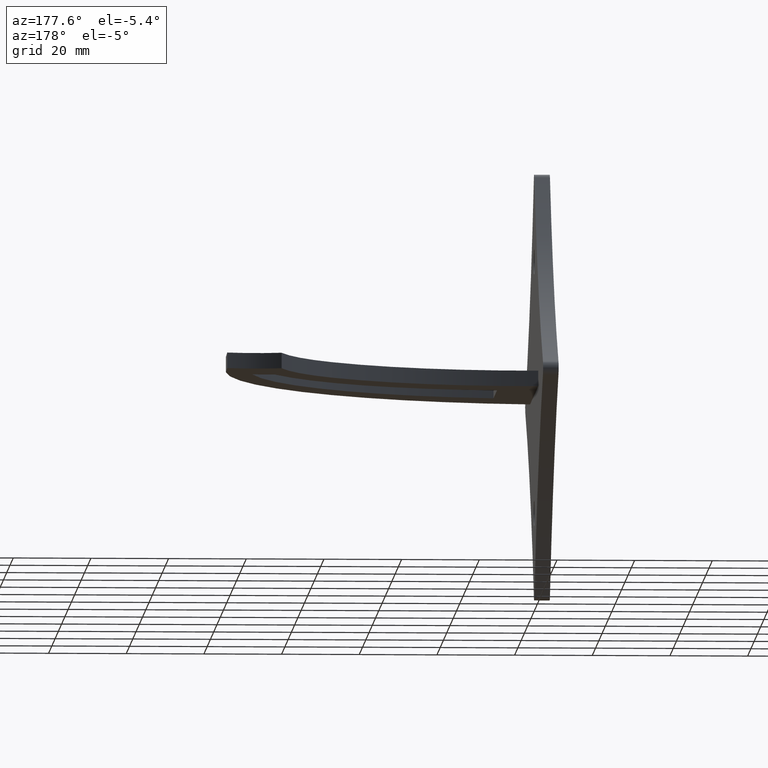
[diagram: clean part render]
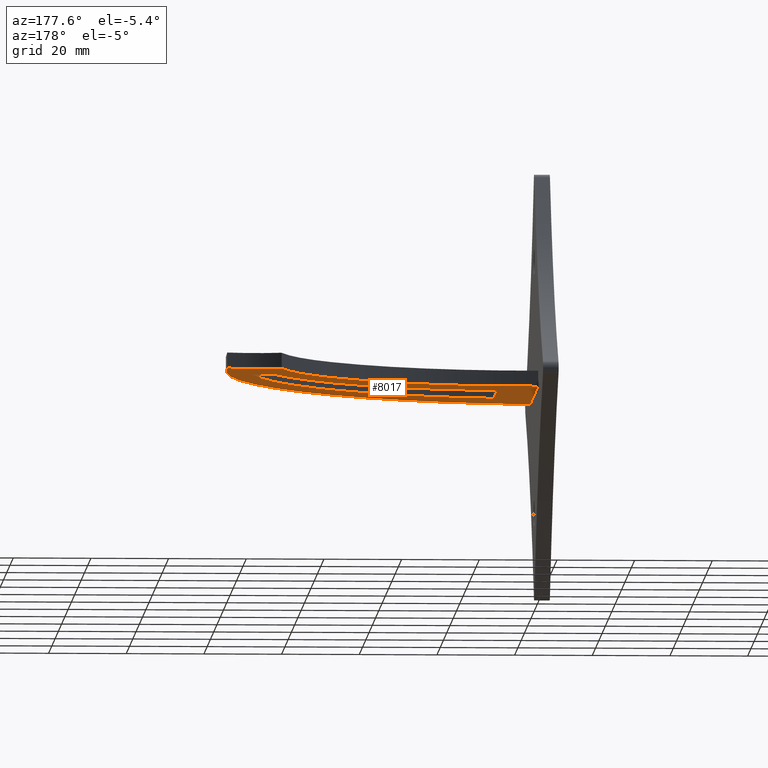
[diagram: same view with one face highlighted and labeled with its STEP entity id]
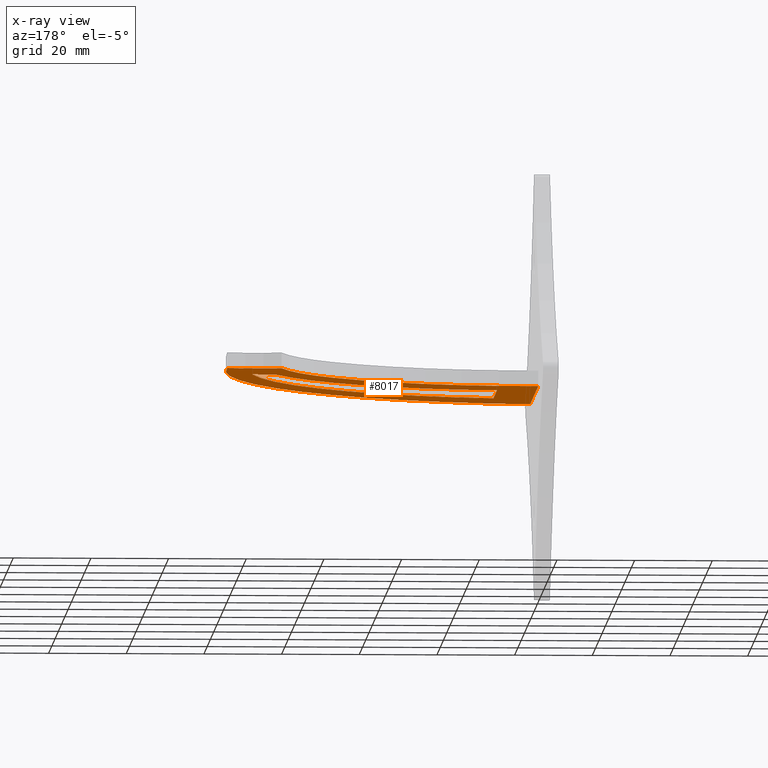
[diagram: x-ray of the same camera — body ghosted, the highlighted face saturated]
A machine part, auxiliary view. The second image highlights one B-rep face of the part: STEP entity #8017.
The next image is the same camera in x-ray: the body ghosted, the highlighted face saturated — about 0% of this face is hidden behind the body in this view.
In plain terms, the highlighted planar face has unit normal (-0, 0, 1).
Its self-contained STEP definition (entity closure, byte-faithful):
#12 = EDGE_CURVE ( 'NONE', #4751, #9887, #10859, .T. ) ;
#174 = CARTESIAN_POINT ( 'NONE',  ( -9.878794471127335441, 66.46807869304582539, -2.000000000000000000 ) ) ;
#339 = CARTESIAN_POINT ( 'NONE',  ( 5.180452133363093736, 82.72691493104838401, -2.000000000000000000 ) ) ;
#444 = CARTESIAN_POINT ( 'NONE',  ( 10.09999999999999964, -8.700000000000001066, -2.000000000000000000 ) ) ;
#546 = ORIENTED_EDGE ( 'NONE', *, *, #6405, .F. ) ;
#923 = EDGE_CURVE ( 'NONE', #7439, #4751, #10198, .T. ) ;
#984 = ORIENTED_EDGE ( 'NONE', *, *, #12, .T. ) ;
#1035 = EDGE_CURVE ( 'NONE', #9887, #5770, #2910, .T. ) ;
#1122 = CARTESIAN_POINT ( 'NONE',  ( 81.99999999999997158, 71.18900302333739205, -2.000000000000000000 ) ) ;
#1190 = AXIS2_PLACEMENT_3D ( 'NONE', #174, #3898, #5605 ) ;
#1270 = DIRECTION ( 'NONE',  ( 1.000000000000000000, 0.000000000000000000, 0.000000000000000000 ) ) ;
#1315 = EDGE_CURVE ( 'NONE', #5722, #5489, #4184, .T. ) ;
#1446 = DIRECTION ( 'NONE',  ( -0.000000000000000000, 0.000000000000000000, 1.000000000000000000 ) ) ;
#1674 = FACE_BOUND ( 'NONE', #3865, .T. ) ;
#1762 = VECTOR ( 'NONE', #7844, 1000.000000000000000 ) ;
#1979 = CARTESIAN_POINT ( 'NONE',  ( -2.274320155918185815, 68.81855391245915143, -2.000000000000000000 ) ) ;
#2007 = VERTEX_POINT ( 'NONE', #1122 ) ;
#2115 = CIRCLE ( 'NONE', #10507, 78.49999999999998579 ) ;
#2225 = EDGE_CURVE ( 'NONE', #5770, #2007, #8271, .T. ) ;
#2491 = DIRECTION ( 'NONE',  ( 1.000000000000000000, 0.000000000000000000, 0.000000000000000000 ) ) ;
#2616 = EDGE_CURVE ( 'NONE', #5722, #3281, #2115, .T. ) ;
#2910 = CIRCLE ( 'NONE', #9169, 55.00000000000000711 ) ;
#2948 = VECTOR ( 'NONE', #1270, 1000.000000000000000 ) ;
#3203 = AXIS2_PLACEMENT_3D ( 'NONE', #11853, #4440, #3469 ) ;
#3269 = CARTESIAN_POINT ( 'NONE',  ( 0.000000000000000000, 0.000000000000000000, -2.000000000000000000 ) ) ;
#3281 = VERTEX_POINT ( 'NONE', #5032 ) ;
#3469 = DIRECTION ( 'NONE',  ( 1.000000000000000000, 0.000000000000000000, 0.000000000000000000 ) ) ;
#3526 = DIRECTION ( 'NONE',  ( -0.000000000000000000, 0.000000000000000000, 1.000000000000000000 ) ) ;
#3827 = FACE_OUTER_BOUND ( 'NONE', #4403, .T. ) ;
#3865 = EDGE_LOOP ( 'NONE', ( #4672, #4154, #10472, #5858 ) ) ;
#3898 = DIRECTION ( 'NONE',  ( -0.000000000000000000, 0.000000000000000000, 1.000000000000000000 ) ) ;
#4074 = ORIENTED_EDGE ( 'NONE', *, *, #923, .T. ) ;
#4154 = ORIENTED_EDGE ( 'NONE', *, *, #1315, .F. ) ;
#4168 = CARTESIAN_POINT ( 'NONE',  ( 14.61404249810564338, 84.41547426875771976, -2.000000000000000000 ) ) ;
#4184 = LINE ( 'NONE', #9854, #1762 ) ;
#4403 = EDGE_LOOP ( 'NONE', ( #984, #7871, #4736, #546, #4074 ) ) ;
#4440 = DIRECTION ( 'NONE',  ( -0.000000000000000000, 0.000000000000000000, 1.000000000000000000 ) ) ;
#4672 = ORIENTED_EDGE ( 'NONE', *, *, #11450, .F. ) ;
#4736 = ORIENTED_EDGE ( 'NONE', *, *, #2225, .T. ) ;
#4751 = VERTEX_POINT ( 'NONE', #5035 ) ;
#4984 = AXIS2_PLACEMENT_3D ( 'NONE', #7675, #9355, #5953 ) ;
#5032 = CARTESIAN_POINT ( 'NONE',  ( 74.81433309437242940, 54.00000000000000711, -2.000000000000000000 ) ) ;
#5035 = CARTESIAN_POINT ( 'NONE',  ( 1.998401444325281773E-12, 24.99999999999996803, -2.000000000000000000 ) ) ;
#5137 = PLANE ( 'NONE',  #8667 ) ;
#5489 = VERTEX_POINT ( 'NONE', #11809 ) ;
#5605 = DIRECTION ( 'NONE',  ( 1.000000000000000000, 0.000000000000000000, 0.000000000000000000 ) ) ;
#5630 = AXIS2_PLACEMENT_3D ( 'NONE', #339, #7585, #11349 ) ;
#5722 = VERTEX_POINT ( 'NONE', #444 ) ;
#5770 = VERTEX_POINT ( 'NONE', #11293 ) ;
#5776 = EDGE_CURVE ( 'NONE', #8599, #3281, #11106, .T. ) ;
#5858 = ORIENTED_EDGE ( 'NONE', *, *, #5776, .F. ) ;
#5908 = DIRECTION ( 'NONE',  ( 1.000000000000000000, 0.000000000000000000, 0.000000000000000000 ) ) ;
#5953 = DIRECTION ( 'NONE',  ( 1.000000000000000000, 0.000000000000000000, 0.000000000000000000 ) ) ;
#6405 = EDGE_CURVE ( 'NONE', #7439, #2007, #10502, .T. ) ;
#6588 = DIRECTION ( 'NONE',  ( -0.000000000000000000, 0.000000000000000000, 1.000000000000000000 ) ) ;
#6718 = CARTESIAN_POINT ( 'NONE',  ( -0.000000000000000000, 54.00000000000000711, -2.000000000000000000 ) ) ;
#7439 = VERTEX_POINT ( 'NONE', #8929 ) ;
#7585 = DIRECTION ( 'NONE',  ( -0.000000000000000000, 0.000000000000000000, 1.000000000000000000 ) ) ;
#7675 = CARTESIAN_POINT ( 'NONE',  ( 74.99999999999998579, 91.20000000000000284, -2.000000000000000000 ) ) ;
#7844 = DIRECTION ( 'NONE',  ( -1.770125995894700956E-16, 1.000000000000000000, 0.000000000000000000 ) ) ;
#7871 = ORIENTED_EDGE ( 'NONE', *, *, #1035, .T. ) ;
#8017 = ADVANCED_FACE ( 'NONE', ( #3827, #1674 ), #5137, .F. ) ;
#8193 = CIRCLE ( 'NONE', #5630, 70.00000000000000000 ) ;
#8271 = CIRCLE ( 'NONE', #4984, 21.19999999999999574 ) ;
#8362 = DIRECTION ( 'NONE',  ( 1.000000000000000000, 0.000000000000000000, 0.000000000000000000 ) ) ;
#8599 = VERTEX_POINT ( 'NONE', #10652 ) ;
#8667 = AXIS2_PLACEMENT_3D ( 'NONE', #3269, #1446, #5908 ) ;
#8929 = CARTESIAN_POINT ( 'NONE',  ( -1.998401444325186453E-12, -24.99999999999879918, -2.000000000000000000 ) ) ;
#8990 = CARTESIAN_POINT ( 'NONE',  ( 53.97457268643530881, 45.99999999999996447, -2.000000000000000000 ) ) ;
#9169 = AXIS2_PLACEMENT_3D ( 'NONE', #4168, #3526, #2491 ) ;
#9355 = DIRECTION ( 'NONE',  ( -0.000000000000000000, 0.000000000000000000, 1.000000000000000000 ) ) ;
#9854 = CARTESIAN_POINT ( 'NONE',  ( 10.09999999999999964, 1.787827255853647886E-15, -2.000000000000000000 ) ) ;
#9887 = VERTEX_POINT ( 'NONE', #8990 ) ;
#10198 = LINE ( 'NONE', #10372, #10611 ) ;
#10372 = CARTESIAN_POINT ( 'NONE',  ( 1.110223024625135740E-12, -3.944304526105082560E-26, -2.000000000000000000 ) ) ;
#10472 = ORIENTED_EDGE ( 'NONE', *, *, #2616, .T. ) ;
#10502 = CIRCLE ( 'NONE', #1190, 91.99999999999938893 ) ;
#10507 = AXIS2_PLACEMENT_3D ( 'NONE', #1979, #6588, #8362 ) ;
#10611 = VECTOR ( 'NONE', #11460, 1000.000000000000000 ) ;
#10652 = CARTESIAN_POINT ( 'NONE',  ( 69.01433309437241803, 54.00000000000000711, -2.000000000000000000 ) ) ;
#10859 = CIRCLE ( 'NONE', #3203, 69.99999999999997158 ) ;
#11106 = LINE ( 'NONE', #6718, #2948 ) ;
#11293 = CARTESIAN_POINT ( 'NONE',  ( 68.00000000000000000, 71.18900302333739205, -2.000000000000000000 ) ) ;
#11349 = DIRECTION ( 'NONE',  ( 1.000000000000000000, 0.000000000000000000, 0.000000000000000000 ) ) ;
#11450 = EDGE_CURVE ( 'NONE', #5489, #8599, #8193, .T. ) ;
#11460 = DIRECTION ( 'NONE',  ( 3.552713678800588651E-14, 1.000000000000000000, 0.000000000000000000 ) ) ;
#11809 = CARTESIAN_POINT ( 'NONE',  ( 10.09999999999999787, 12.90000000000000391, -2.000000000000000000 ) ) ;
#11853 = CARTESIAN_POINT ( 'NONE',  ( 3.879352446742994065, 94.89242179660072907, -2.000000000000000000 ) ) ;